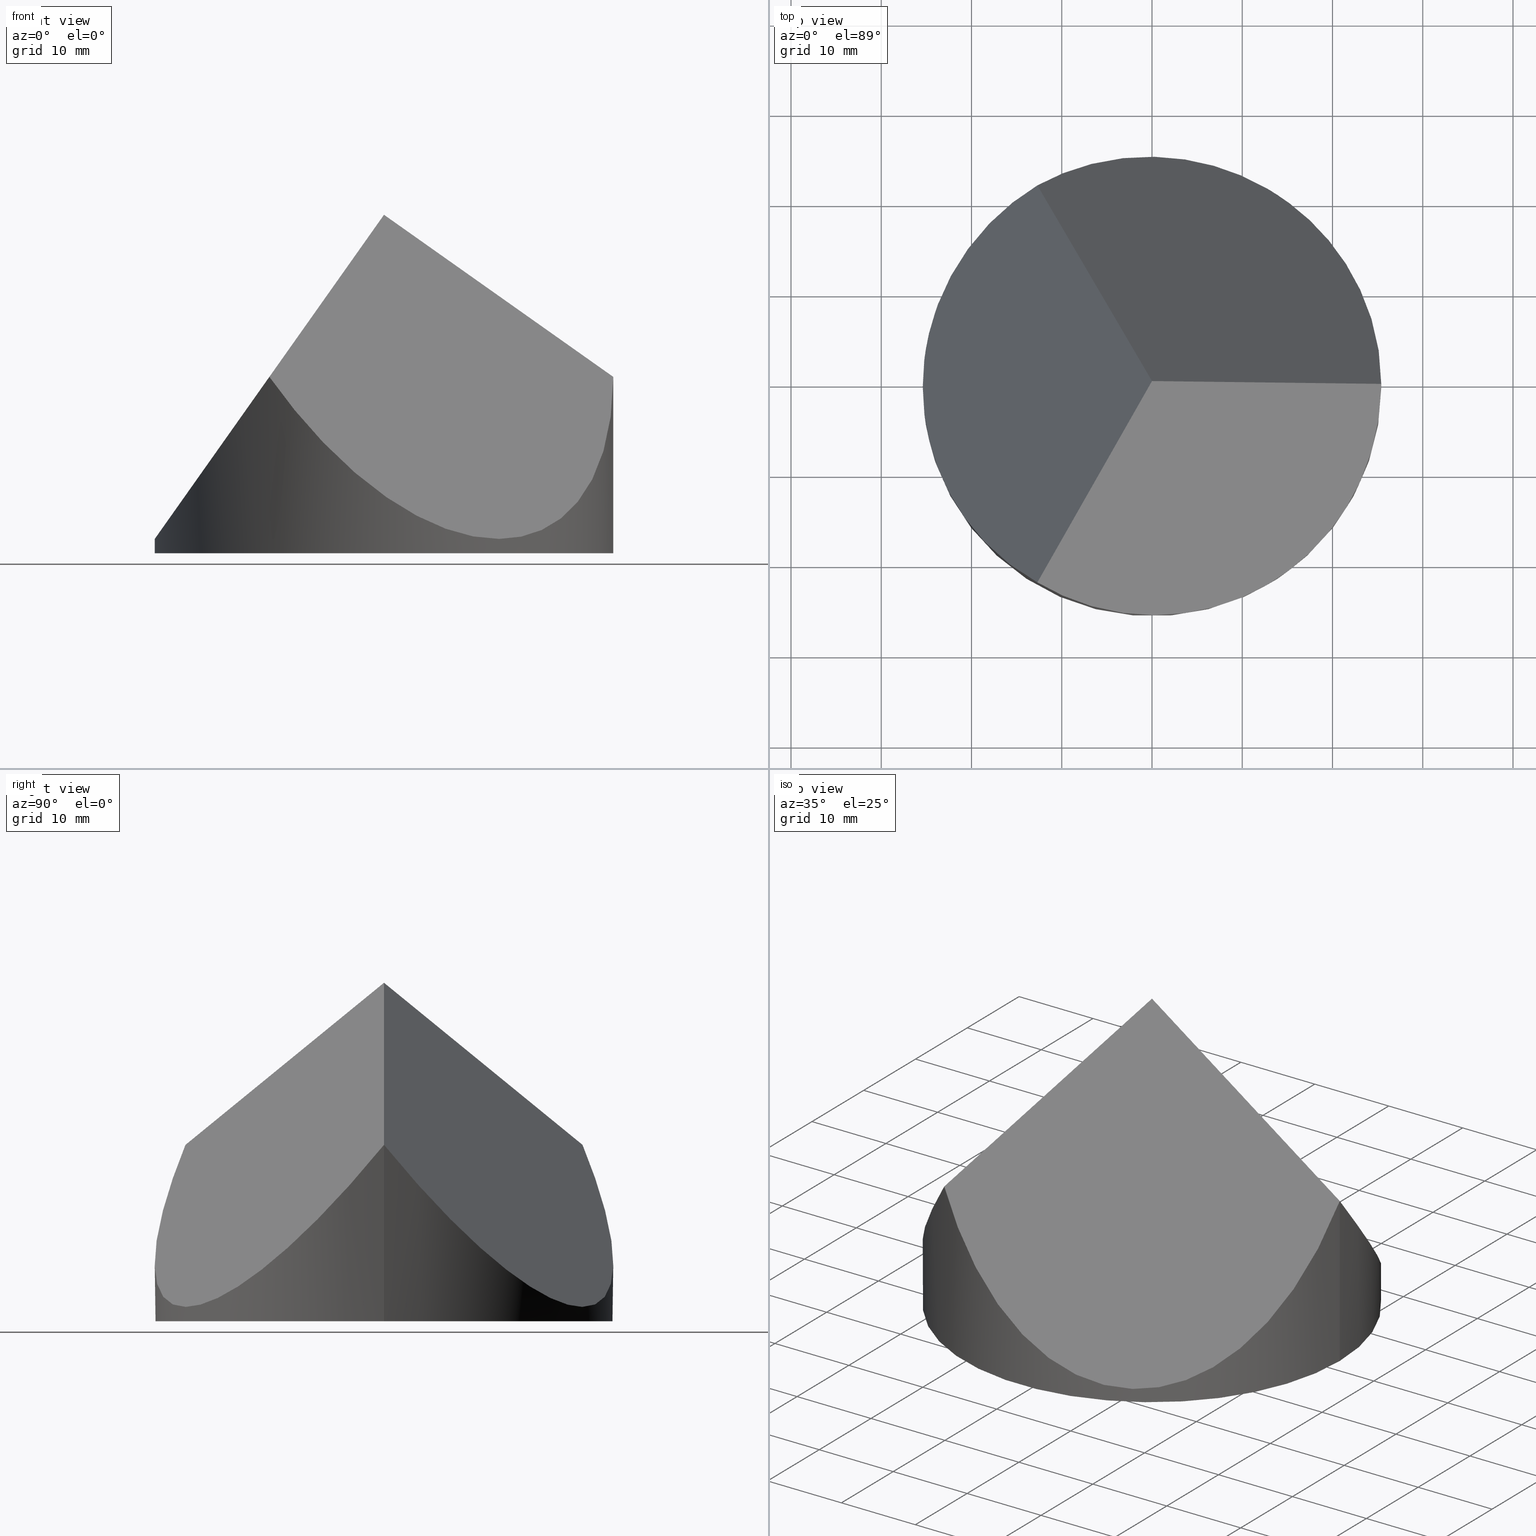
[diagram: canonical four-view strip — front | top / right | iso, engineering-drawing reading convention]
A machine part, canonical four-view strip (front | top / right | iso — engineering-drawing reading convention). The complete STEP part file that produces these views, byte-faithful:
ISO-10303-21;
HEADER;
FILE_DESCRIPTION (( 'STEP AP203' ),
    '1' );
FILE_NAME ('371507.STEP',
    '2019-07-25T01:45:26',
    ( '' ),
    ( '' ),
    'SwSTEP 2.0',
    'SolidWorks 2016',
    '' );
FILE_SCHEMA (( 'CONFIG_CONTROL_DESIGN' ));
ENDSEC;

DATA;
#1 = APPROVAL ( #127, 'δָ��' ) ;
#2 = DATE_AND_TIME ( #186, #174 ) ;
#3 =( LENGTH_UNIT ( ) NAMED_UNIT ( * ) SI_UNIT ( .MILLI., .METRE. ) );
#4 =( BOUNDED_CURVE ( )  B_SPLINE_CURVE ( 3, ( #122, #101, #192, #190 ),
 .UNSPECIFIED., .F., .T. ) 
 B_SPLINE_CURVE_WITH_KNOTS ( ( 4, 4 ),
 ( 0.0000000000000000000, 1.047197551196596700 ),
 .UNSPECIFIED. ) 
 CURVE ( )  GEOMETRIC_REPRESENTATION_ITEM ( )  RATIONAL_B_SPLINE_CURVE ( ( 1.000000000000000000, 0.9106836025229592100, 0.9106836025229592100, 1.000000000000000000 ) ) 
 REPRESENTATION_ITEM ( '' )  );
#5 = SECURITY_CLASSIFICATION_LEVEL ( 'unclassified' ) ;
#6 = ADVANCED_FACE ( 'NONE', ( #225 ), #258, .T. ) ;
#7 = APPLICATION_PROTOCOL_DEFINITION ( 'international standard', 'config_control_design', 1994, #80 ) ;
#8 = EDGE_LOOP ( 'NONE', ( #287, #227, #57, #12 ) ) ;
#9 = CARTESIAN_POINT ( 'NONE',  ( 0.0000000000000000000, 0.0000000000000000000, 0.0000000000000000000 ) ) ;
#10 = PERSON_AND_ORGANIZATION_ROLE ( 'classification_officer' ) ;
#11 = SECURITY_CLASSIFICATION ( '', '', #5 ) ;
#12 = ORIENTED_EDGE ( 'NONE', *, *, #301, .F. ) ;
#13 = ORIENTED_EDGE ( 'NONE', *, *, #43, .T. ) ;
#14 = COORDINATED_UNIVERSAL_TIME_OFFSET ( 8, 0, .AHEAD. ) ;
#15 = DESIGN_CONTEXT ( 'detailed design', #241, 'design' ) ;
#16 = PERSON_AND_ORGANIZATION ( #40, #247 ) ;
#17 = ORIENTED_EDGE ( 'NONE', *, *, #39, .F. ) ;
#18 = CC_DESIGN_DATE_AND_TIME_ASSIGNMENT ( #274, #271, ( #74 ) ) ;
#19 = CALENDAR_DATE ( 2019, 25, 7 ) ;
#20 = LINE ( 'NONE', #181, #183 ) ;
#21 = DIRECTION ( 'NONE',  ( -1.000000000000000000, 0.0000000000000000000, 0.0000000000000000000 ) ) ;
#22 = PRODUCT_DEFINITION_SHAPE ( 'NONE', 'NONE',  #74 ) ;
#23 = PRODUCT_RELATED_PRODUCT_CATEGORY ( 'detail', '', ( #180 ) ) ;
#24 = CALENDAR_DATE ( 2019, 25, 7 ) ;
#25 = ADVANCED_FACE ( 'NONE', ( #68 ), #78, .T. ) ;
#26 = EDGE_LOOP ( 'NONE', ( #85, #17 ) ) ;
#27 = CARTESIAN_POINT ( 'NONE',  ( 53.69357503463527300, -30.99999999999985400, 37.50000000000000000 ) ) ;
#28 = APPLICATION_CONTEXT ( 'configuration controlled 3d designs of mechanical parts and assemblies' ) ;
#29 = PERSON_AND_ORGANIZATION ( #40, #247 ) ;
#30 = VERTEX_POINT ( 'NONE', #255 ) ;
#31 = CARTESIAN_POINT ( 'NONE',  ( 25.40000000000000600, 8.287156070320854400E-015, 19.54321793648239600 ) ) ;
#32 = DIRECTION ( 'NONE',  ( 0.0000000000000000000, 0.0000000000000000000, 1.000000000000000000 ) ) ;
#33 = DATE_TIME_ROLE ( 'creation_date' ) ;
#34 = APPROVAL_DATE_TIME ( #151, #143 ) ;
#35 = CARTESIAN_POINT ( 'NONE',  ( -25.39999999999999900, 0.0000000000000000000, 0.0000000000000000000 ) ) ;
#36 = ORIENTED_EDGE ( 'NONE', *, *, #197, .F. ) ;
#37 = PERSON_AND_ORGANIZATION ( #40, #247 ) ;
#38 = ADVANCED_BREP_SHAPE_REPRESENTATION ( '371507', ( #61, #82 ), #161 ) ;
#39 = EDGE_CURVE ( 'NONE', #252, #304, #207, .T. ) ;
#40 = PERSON ( 'δָ��', 'δָ��', 'δָ��', ('δָ��'), ('δָ��'), ('δָ��') ) ;
#41 = CALENDAR_DATE ( 2019, 25, 7 ) ;
#42 = CARTESIAN_POINT ( 'NONE',  ( 6.349999999999965900, 32.99556788418713200, -7.391955158794217200 ) ) ;
#43 = EDGE_CURVE ( 'NONE', #283, #64, #20, .T. ) ;
#44 = CARTESIAN_POINT ( 'NONE',  ( -6.938893903907228400E-015, -3.650717720411316700E-015, 37.49999999999999300 ) ) ;
#45 = UNCERTAINTY_MEASURE_WITH_UNIT (LENGTH_MEASURE( 1.000000000000000100E-005 ), #3, 'distance_accuracy_value', 'NONE');
#46 = APPROVAL_PERSON_ORGANIZATION ( #237, #176, #121 ) ;
#47 = CARTESIAN_POINT ( 'NONE',  ( 46.33235910246752800, 26.74999999999989700, 37.50000000000000000 ) ) ;
#48 = CARTESIAN_POINT ( 'NONE',  ( 11.40424666751465700, -19.75273465018338100, 53.62469070922507100 ) ) ;
#49 = CC_DESIGN_PERSON_AND_ORGANIZATION_ASSIGNMENT ( #29, #188, ( #250 ) ) ;
#50 = CARTESIAN_POINT ( 'NONE',  ( 0.0000000000000000000, 0.0000000000000000000, 0.0000000000000000000 ) ) ;
#51 = APPROVAL_PERSON_ORGANIZATION ( #113, #143, #294 ) ;
#52 = CARTESIAN_POINT ( 'NONE',  ( -25.40000000000000600, -9.297045256124731000, 1.586435872964648800 ) ) ;
#53 = SHAPE_DEFINITION_REPRESENTATION ( #22, #38 ) ;
#54 = APPLICATION_PROTOCOL_DEFINITION ( 'international standard', 'config_control_design', 1994, #28 ) ;
#55 = DIRECTION ( 'NONE',  ( 1.000000000000000000, 0.0000000000000000000, 0.0000000000000000000 ) ) ;
#56 = FACE_OUTER_BOUND ( 'NONE', #26, .T. ) ;
#57 = ORIENTED_EDGE ( 'NONE', *, *, #189, .F. ) ;
#58 = APPROVAL_ROLE ( '' ) ;
#59 = DATE_AND_TIME ( #120, #193 ) ;
#60 = APPROVAL_DATE_TIME ( #119, #176 ) ;
#61 = MANIFOLD_SOLID_BREP ( '�г�-����3', #152 ) ;
#62 = EDGE_CURVE ( 'NONE', #73, #64, #179, .T. ) ;
#63 = VECTOR ( 'NONE', #212, 1000.000000000000000 ) ;
#64 = VERTEX_POINT ( 'NONE', #44 ) ;
#65 = AXIS2_PLACEMENT_3D ( 'NONE', #160, #228, #114 ) ;
#66 = DIRECTION ( 'NONE',  ( -0.8165531063768113300, -1.665334552906125000E-016, 0.5772703218305786900 ) ) ;
#67 = CARTESIAN_POINT ( 'NONE',  ( 0.0000000000000000000, 0.0000000000000000000, 37.50000000000000000 ) ) ;
#68 = FACE_OUTER_BOUND ( 'NONE', #191, .T. ) ;
#69 = CARTESIAN_POINT ( 'NONE',  ( 0.0000000000000000000, -39.50000000000000000, 37.50000000000000000 ) ) ;
#70 = CARTESIAN_POINT ( 'NONE',  ( -12.70000000000003100, -21.99704525612473600, 19.54321793648228600 ) ) ;
#71 = DESIGN_CONTEXT ( 'detailed design', #28, 'design' ) ;
#72 = DIRECTION ( 'NONE',  ( 0.4082200218682778300, 0.7070578185427395200, 0.5774302165486712200 ) ) ;
#73 = VERTEX_POINT ( 'NONE', #230 ) ;
#74 = PRODUCT_DEFINITION ( 'δ֪', '', #102, #15 ) ;
#75 = PERSON_AND_ORGANIZATION_ROLE ( 'creator' ) ;
#76 = MECHANICAL_CONTEXT ( 'NONE', #80, 'mechanical' ) ;
#77 = AXIS2_PLACEMENT_3D ( 'NONE', #307, #129, #21 ) ;
#78 = CYLINDRICAL_SURFACE ( 'NONE', #108, 25.39999999999999900 ) ;
#79 = PERSON_AND_ORGANIZATION ( #40, #247 ) ;
#80 = APPLICATION_CONTEXT ( 'configuration controlled 3d designs of mechanical parts and assemblies' ) ;
#81 = PERSON_AND_ORGANIZATION_ROLE ( 'creator' ) ;
#82 = AXIS2_PLACEMENT_3D ( 'NONE', #9, #246, #55 ) ;
#83 = COORDINATED_UNIVERSAL_TIME_OFFSET ( 8, 0, .AHEAD. ) ;
#84 = PERSON_AND_ORGANIZATION ( #40, #247 ) ;
#85 = ORIENTED_EDGE ( 'NONE', *, *, #205, .F. ) ;
#86 = CC_DESIGN_APPROVAL ( #143, ( #11 ) ) ;
#87 = LOCAL_TIME ( 9, 45, 26.00000000000000000, #83 ) ;
#88 = PERSON_AND_ORGANIZATION ( #40, #247 ) ;
#89 = CC_DESIGN_PERSON_AND_ORGANIZATION_ASSIGNMENT ( #177, #219, ( #11 ) ) ;
#90 = CARTESIAN_POINT ( 'NONE',  ( -11.40424666751465700, -19.75273465018338800, 21.37530929077492900 ) ) ;
#91 = LOCAL_TIME ( 9, 45, 26.00000000000000000, #206 ) ;
#92 = EDGE_LOOP ( 'NONE', ( #36, #100, #110, #277, #264 ) ) ;
#93 = LOCAL_TIME ( 9, 45, 26.00000000000000000, #156 ) ;
#94 =( BOUNDED_CURVE ( )  B_SPLINE_CURVE ( 3, ( #118, #285, #52, #261 ),
 .UNSPECIFIED., .F., .T. ) 
 B_SPLINE_CURVE_WITH_KNOTS ( ( 4, 4 ),
 ( 5.235987755982989700, 6.283185307179586200 ),
 .UNSPECIFIED. ) 
 CURVE ( )  GEOMETRIC_REPRESENTATION_ITEM ( )  RATIONAL_B_SPLINE_CURVE ( ( 1.000000000000000000, 0.9106836025229592100, 0.9106836025229592100, 1.000000000000000000 ) ) 
 REPRESENTATION_ITEM ( '' )  );
#95 = DIRECTION ( 'NONE',  ( -0.0000000000000000000, -0.0000000000000000000, -1.000000000000000000 ) ) ;
#96 = DATE_AND_TIME ( #263, #157 ) ;
#97 = DIRECTION ( 'NONE',  ( 0.0000000000000000000, -0.6325343505460012700, 0.7745323075116674600 ) ) ;
#98 = CC_DESIGN_PERSON_AND_ORGANIZATION_ASSIGNMENT ( #16, #81, ( #74 ) ) ;
#99 = DIRECTION ( 'NONE',  ( 0.0000000000000000000, 0.0000000000000000000, 1.000000000000000000 ) ) ;
#100 = ORIENTED_EDGE ( 'NONE', *, *, #218, .T. ) ;
#101 = CARTESIAN_POINT ( 'NONE',  ( -25.40000000000000600, 9.297045256124734500, 1.586435872964648800 ) ) ;
#102 = PRODUCT_DEFINITION_FORMATION_WITH_SPECIFIED_SOURCE ( '�κ�', '', #250, .NOT_KNOWN. ) ;
#103 = PERSON_AND_ORGANIZATION_ROLE ( 'creator' ) ;
#104 = APPROVAL_STATUS ( 'not_yet_approved' ) ;
#105 = ORIENTED_EDGE ( 'NONE', *, *, #112, .F. ) ;
#106 = LOCAL_TIME ( 9, 45, 26.00000000000000000, #300 ) ;
#107 = CC_DESIGN_APPROVAL ( #1, ( #202 ) ) ;
#108 = AXIS2_PLACEMENT_3D ( 'NONE', #67, #95, #233 ) ;
#109 = COORDINATED_UNIVERSAL_TIME_OFFSET ( 8, 0, .AHEAD. ) ;
#110 = ORIENTED_EDGE ( 'NONE', *, *, #204, .T. ) ;
#111 = APPROVAL ( #148, 'δָ��' ) ;
#112 = EDGE_CURVE ( 'NONE', #283, #30, #257, .T. ) ;
#113 = PERSON_AND_ORGANIZATION ( #40, #247 ) ;
#114 = DIRECTION ( 'NONE',  ( 1.000000000000000000, 0.0000000000000000000, 0.0000000000000000000 ) ) ;
#115 = DIRECTION ( 'NONE',  ( 1.000000000000000000, 0.0000000000000000000, 0.0000000000000000000 ) ) ;
#116 = COORDINATED_UNIVERSAL_TIME_OFFSET ( 8, 0, .AHEAD. ) ;
#117 = ORIENTED_EDGE ( 'NONE', *, *, #62, .F. ) ;
#118 = CARTESIAN_POINT ( 'NONE',  ( -12.70000000000003100, -21.99704525612473600, 19.54321793648228600 ) ) ;
#119 = DATE_AND_TIME ( #41, #91 ) ;
#120 = CALENDAR_DATE ( 2019, 25, 7 ) ;
#121 = APPROVAL_ROLE ( '' ) ;
#122 = CARTESIAN_POINT ( 'NONE',  ( -25.39999999999999900, 0.0000000000000000000, 1.586435872964663000 ) ) ;
#123 = APPROVAL_ROLE ( '' ) ;
#124 = APPROVAL_STATUS ( 'not_yet_approved' ) ;
#125 = CC_DESIGN_PERSON_AND_ORGANIZATION_ASSIGNMENT ( #84, #75, ( #312 ) ) ;
#126 = APPROVAL_DATE_TIME ( #2, #111 ) ;
#127 = APPROVAL_STATUS ( 'not_yet_approved' ) ;
#128 = APPROVAL_PERSON_ORGANIZATION ( #220, #141, #58 ) ;
#129 = DIRECTION ( 'NONE',  ( -0.0000000000000000000, -0.0000000000000000000, -1.000000000000000000 ) ) ;
#130 = CC_DESIGN_PERSON_AND_ORGANIZATION_ASSIGNMENT ( #267, #145, ( #158 ) ) ;
#131 = CARTESIAN_POINT ( 'NONE',  ( 25.40000000000000200, 21.99704525612476000, -7.391955158794154100 ) ) ;
#132 = ADVANCED_FACE ( 'NONE', ( #163 ), #162, .F. ) ;
#133 = CC_DESIGN_APPROVAL ( #141, ( #74 ) ) ;
#134 = LINE ( 'NONE', #259, #63 ) ;
#135 = APPROVAL_PERSON_ORGANIZATION ( #88, #146, #123 ) ;
#136 = EDGE_CURVE ( 'NONE', #215, #304, #182, .T. ) ;
#137 = CARTESIAN_POINT ( 'NONE',  ( 6.349999999999976600, -32.99556788418713200, -7.391955158794225200 ) ) ;
#138 = DIRECTION ( 'NONE',  ( 0.4082765531884056700, -0.7071557336614137100, 0.5772703218305811300 ) ) ;
#139 = LOCAL_TIME ( 9, 45, 26.00000000000000000, #198 ) ;
#140 = DIRECTION ( 'NONE',  ( -0.4082200218682779900, 0.7070578185427394100, -0.5774302165486712200 ) ) ;
#141 = APPROVAL ( #269, 'δָ��' ) ;
#142 = MECHANICAL_CONTEXT ( 'NONE', #194, 'mechanical' ) ;
#143 = APPROVAL ( #104, 'δָ��' ) ;
#144 = FACE_OUTER_BOUND ( 'NONE', #279, .T. ) ;
#145 = PERSON_AND_ORGANIZATION_ROLE ( 'design_supplier' ) ;
#146 = APPROVAL ( #124, 'δָ��' ) ;
#147 = DATE_AND_TIME ( #270, #106 ) ;
#148 = APPROVAL_STATUS ( 'not_yet_approved' ) ;
#149 = APPLICATION_PROTOCOL_DEFINITION ( 'international standard', 'config_control_design', 1994, #241 ) ;
#150 = SECURITY_CLASSIFICATION_LEVEL ( 'unclassified' ) ;
#151 = DATE_AND_TIME ( #203, #139 ) ;
#152 = CLOSED_SHELL ( 'NONE', ( #25, #6, #132, #236, #229, #232 ) ) ;
#153 = CC_DESIGN_DATE_AND_TIME_ASSIGNMENT ( #297, #217, ( #11 ) ) ;
#154 = DATE_TIME_ROLE ( 'classification_date' ) ;
#155 = APPROVAL_PERSON_ORGANIZATION ( #251, #111, #293 ) ;
#156 = COORDINATED_UNIVERSAL_TIME_OFFSET ( 8, 0, .AHEAD. ) ;
#157 = LOCAL_TIME ( 9, 45, 26.00000000000000000, #209 ) ;
#158 = PRODUCT_DEFINITION_FORMATION_WITH_SPECIFIED_SOURCE ( '�κ�', '', #180, .NOT_KNOWN. ) ;
#159 = ORIENTED_EDGE ( 'NONE', *, *, #189, .T. ) ;
#160 = CARTESIAN_POINT ( 'NONE',  ( 0.0000000000000000000, 0.0000000000000000000, 0.0000000000000000000 ) ) ;
#161 =( GEOMETRIC_REPRESENTATION_CONTEXT ( 3 ) GLOBAL_UNCERTAINTY_ASSIGNED_CONTEXT ( ( #45 ) ) GLOBAL_UNIT_ASSIGNED_CONTEXT ( ( #3, #221, #172 ) ) REPRESENTATION_CONTEXT ( 'NONE', 'WORKASPACE' ) );
#162 = PLANE ( 'NONE',  #272 ) ;
#163 = FACE_OUTER_BOUND ( 'NONE', #8, .T. ) ;
#164 = AXIS2_PLACEMENT_3D ( 'NONE', #27, #72, #97 ) ;
#165 = CARTESIAN_POINT ( 'NONE',  ( 0.0000000000000000000, 0.0000000000000000000, 0.0000000000000000000 ) ) ;
#166 = DIRECTION ( 'NONE',  ( 0.0000000000000000000, 0.6325343505460012700, 0.7745323075116674600 ) ) ;
#167 = CARTESIAN_POINT ( 'NONE',  ( -25.39999999999999900, 0.0000000000000000000, 37.50000000000000000 ) ) ;
#168 = COORDINATED_UNIVERSAL_TIME_OFFSET ( 8, 0, .AHEAD. ) ;
#169 = CARTESIAN_POINT ( 'NONE',  ( 0.0000000000000000000, 0.0000000000000000000, 0.0000000000000000000 ) ) ;
#170 =( BOUNDED_CURVE ( )  B_SPLINE_CURVE ( 3, ( #213, #238, #137, #70 ),
 .UNSPECIFIED., .F., .T. ) 
 B_SPLINE_CURVE_WITH_KNOTS ( ( 4, 4 ),
 ( 5.235987755982986200, 7.330382858376182800 ),
 .UNSPECIFIED. ) 
 CURVE ( )  GEOMETRIC_REPRESENTATION_ITEM ( )  RATIONAL_B_SPLINE_CURVE ( ( 1.000000000000000000, 0.6666666666666663000, 0.6666666666666663000, 1.000000000000000000 ) ) 
 REPRESENTATION_ITEM ( '' )  );
#171 = APPROVAL_STATUS ( 'not_yet_approved' ) ;
#172 =( NAMED_UNIT ( * ) SI_UNIT ( $, .STERADIAN. ) SOLID_ANGLE_UNIT ( ) );
#173 = AXIS2_PLACEMENT_3D ( 'NONE', #165, #99, #115 ) ;
#174 = LOCAL_TIME ( 9, 45, 26.00000000000000000, #116 ) ;
#175 = ORIENTED_EDGE ( 'NONE', *, *, #197, .T. ) ;
#176 = APPROVAL ( #171, 'δָ��' ) ;
#177 = PERSON_AND_ORGANIZATION ( #40, #247 ) ;
#178 = CC_DESIGN_APPROVAL ( #146, ( #102 ) ) ;
#179 = LINE ( 'NONE', #90, #242 ) ;
#180 = PRODUCT ( '371507', '371507', '', ( #142 ) ) ;
#181 = CARTESIAN_POINT ( 'NONE',  ( 35.80067308283096800, 1.040834085586084300E-014, 12.19035888678596900 ) ) ;
#182 = LINE ( 'NONE', #167, #291 ) ;
#183 = VECTOR ( 'NONE', #66, 1000.000000000000100 ) ;
#184 = APPROVAL_DATE_TIME ( #253, #1 ) ;
#185 = DIRECTION ( 'NONE',  ( -0.5774302165486711000, 0.0000000000000000000, -0.8164400437365593200 ) ) ;
#186 = CALENDAR_DATE ( 2019, 25, 7 ) ;
#187 = PLANE ( 'NONE',  #280 ) ;
#188 = PERSON_AND_ORGANIZATION_ROLE ( 'design_owner' ) ;
#189 = EDGE_CURVE ( 'NONE', #30, #64, #309, .T. ) ;
#190 = CARTESIAN_POINT ( 'NONE',  ( -12.70000000000002400, 21.99704525612472500, 19.54321793648229600 ) ) ;
#191 = EDGE_LOOP ( 'NONE', ( #105, #175, #275, #310, #210 ) ) ;
#192 = CARTESIAN_POINT ( 'NONE',  ( -20.75147737193764300, 17.34852262806235900, 8.159074278432859400 ) ) ;
#193 = LOCAL_TIME ( 9, 45, 26.00000000000000000, #14 ) ;
#194 = APPLICATION_CONTEXT ( 'configuration controlled 3d designs of mechanical parts and assemblies' ) ;
#195 = CC_DESIGN_PERSON_AND_ORGANIZATION_ASSIGNMENT ( #211, #10, ( #202 ) ) ;
#196 = DIRECTION ( 'NONE',  ( 1.000000000000000000, 0.0000000000000000000, -0.0000000000000000000 ) ) ;
#197 = EDGE_CURVE ( 'NONE', #283, #252, #134, .T. ) ;
#198 = COORDINATED_UNIVERSAL_TIME_OFFSET ( 8, 0, .AHEAD. ) ;
#199 = ORIENTED_EDGE ( 'NONE', *, *, #218, .F. ) ;
#200 = FACE_OUTER_BOUND ( 'NONE', #201, .T. ) ;
#201 = EDGE_LOOP ( 'NONE', ( #245, #298, #159 ) ) ;
#202 = SECURITY_CLASSIFICATION ( '', '', #150 ) ;
#203 = CALENDAR_DATE ( 2019, 25, 7 ) ;
#204 = EDGE_CURVE ( 'NONE', #73, #215, #94, .T. ) ;
#205 = EDGE_CURVE ( 'NONE', #304, #252, #286, .T. ) ;
#206 = COORDINATED_UNIVERSAL_TIME_OFFSET ( 8, 0, .AHEAD. ) ;
#207 = CIRCLE ( 'NONE', #65, 25.39999999999999900 ) ;
#208 = DIRECTION ( 'NONE',  ( 0.8164400437365593200, 0.0000000000000000000, -0.5774302165486711000 ) ) ;
#209 = COORDINATED_UNIVERSAL_TIME_OFFSET ( 8, 0, .AHEAD. ) ;
#210 = ORIENTED_EDGE ( 'NONE', *, *, #301, .T. ) ;
#211 = PERSON_AND_ORGANIZATION ( #40, #247 ) ;
#212 = DIRECTION ( 'NONE',  ( -0.0000000000000000000, -0.0000000000000000000, -1.000000000000000000 ) ) ;
#213 = CARTESIAN_POINT ( 'NONE',  ( 25.40000000000000600, 8.287156070320854400E-015, 19.54321793648239600 ) ) ;
#214 = APPLICATION_PROTOCOL_DEFINITION ( 'international standard', 'config_control_design', 1994, #194 ) ;
#215 = VERTEX_POINT ( 'NONE', #311 ) ;
#216 = APPROVAL_PERSON_ORGANIZATION ( #288, #1, #223 ) ;
#217 = DATE_TIME_ROLE ( 'classification_date' ) ;
#218 = EDGE_CURVE ( 'NONE', #283, #73, #170, .T. ) ;
#219 = PERSON_AND_ORGANIZATION_ROLE ( 'classification_officer' ) ;
#220 = PERSON_AND_ORGANIZATION ( #40, #247 ) ;
#221 =( NAMED_UNIT ( * ) PLANE_ANGLE_UNIT ( ) SI_UNIT ( $, .RADIAN. ) );
#222 = CC_DESIGN_APPROVAL ( #176, ( #158 ) ) ;
#223 = APPROVAL_ROLE ( '' ) ;
#224 = VECTOR ( 'NONE', #138, 1000.000000000000000 ) ;
#225 = FACE_OUTER_BOUND ( 'NONE', #92, .T. ) ;
#226 = DATE_AND_TIME ( #19, #276 ) ;
#227 = ORIENTED_EDGE ( 'NONE', *, *, #62, .T. ) ;
#228 = DIRECTION ( 'NONE',  ( 0.0000000000000000000, 0.0000000000000000000, 1.000000000000000000 ) ) ;
#229 = ADVANCED_FACE ( 'NONE', ( #200 ), #265, .T. ) ;
#230 = CARTESIAN_POINT ( 'NONE',  ( -12.70000000000003100, -21.99704525612473600, 19.54321793648228600 ) ) ;
#231 = CALENDAR_DATE ( 2019, 25, 7 ) ;
#232 = ADVANCED_FACE ( 'NONE', ( #144 ), #290, .F. ) ;
#233 = DIRECTION ( 'NONE',  ( -1.000000000000000000, 0.0000000000000000000, 0.0000000000000000000 ) ) ;
#234 = PERSON_AND_ORGANIZATION ( #40, #247 ) ;
#235 = DIRECTION ( 'NONE',  ( -0.0000000000000000000, -0.0000000000000000000, -1.000000000000000000 ) ) ;
#236 = ADVANCED_FACE ( 'NONE', ( #56 ), #187, .F. ) ;
#237 = PERSON_AND_ORGANIZATION ( #40, #247 ) ;
#238 = CARTESIAN_POINT ( 'NONE',  ( 25.40000000000000200, -21.99704525612475300, -7.391955158794162100 ) ) ;
#239 = APPROVAL_DATE_TIME ( #147, #146 ) ;
#240 = CARTESIAN_POINT ( 'NONE',  ( 25.39999999999999900, 3.110602869834276900E-015, 0.0000000000000000000 ) ) ;
#241 = APPLICATION_CONTEXT ( 'configuration controlled 3d designs of mechanical parts and assemblies' ) ;
#242 = VECTOR ( 'NONE', #254, 1000.000000000000100 ) ;
#243 = PERSON_AND_ORGANIZATION_ROLE ( 'design_owner' ) ;
#244 = CC_DESIGN_PERSON_AND_ORGANIZATION_ASSIGNMENT ( #234, #243, ( #180 ) ) ;
#245 = ORIENTED_EDGE ( 'NONE', *, *, #43, .F. ) ;
#246 = DIRECTION ( 'NONE',  ( 0.0000000000000000000, 0.0000000000000000000, 1.000000000000000000 ) ) ;
#247 = ORGANIZATION ( 'δָ��', 'δָ��', '' ) ;
#248 = CC_DESIGN_SECURITY_CLASSIFICATION ( #202, ( #102 ) ) ;
#249 = PRODUCT_DEFINITION_SHAPE ( 'NONE', 'NONE',  #312 ) ;
#250 = PRODUCT ( '371507', '371507', '', ( #76 ) ) ;
#251 = PERSON_AND_ORGANIZATION ( #40, #247 ) ;
#252 = VERTEX_POINT ( 'NONE', #240 ) ;
#253 = DATE_AND_TIME ( #305, #93 ) ;
#254 = DIRECTION ( 'NONE',  ( 0.4082765531884056100, 0.7071557336614137100, 0.5772703218305810200 ) ) ;
#255 = CARTESIAN_POINT ( 'NONE',  ( -12.70000000000002400, 21.99704525612472500, 19.54321793648229600 ) ) ;
#256 = CC_DESIGN_PERSON_AND_ORGANIZATION_ASSIGNMENT ( #37, #299, ( #102 ) ) ;
#257 =( BOUNDED_CURVE ( )  B_SPLINE_CURVE ( 3, ( #281, #131, #42, #284 ),
 .UNSPECIFIED., .F., .T. ) 
 B_SPLINE_CURVE_WITH_KNOTS ( ( 4, 4 ),
 ( 5.235987755982986200, 7.330382858376182800 ),
 .UNSPECIFIED. ) 
 CURVE ( )  GEOMETRIC_REPRESENTATION_ITEM ( )  RATIONAL_B_SPLINE_CURVE ( ( 1.000000000000000000, 0.6666666666666663000, 0.6666666666666663000, 1.000000000000000000 ) ) 
 REPRESENTATION_ITEM ( '' )  );
#258 = CYLINDRICAL_SURFACE ( 'NONE', #77, 25.39999999999999900 ) ;
#259 = CARTESIAN_POINT ( 'NONE',  ( 25.39999999999999900, 3.110602869834276900E-015, 37.50000000000000000 ) ) ;
#260 = CC_DESIGN_DATE_AND_TIME_ASSIGNMENT ( #59, #154, ( #202 ) ) ;
#261 = CARTESIAN_POINT ( 'NONE',  ( -25.39999999999999900, 0.0000000000000000000, 1.586435872964663000 ) ) ;
#262 = AXIS2_PLACEMENT_3D ( 'NONE', #47, #140, #166 ) ;
#263 = CALENDAR_DATE ( 2019, 25, 7 ) ;
#264 = ORIENTED_EDGE ( 'NONE', *, *, #205, .T. ) ;
#265 = PLANE ( 'NONE',  #164 ) ;
#266 = CC_DESIGN_APPROVAL ( #111, ( #312 ) ) ;
#267 = PERSON_AND_ORGANIZATION ( #40, #247 ) ;
#268 = CC_DESIGN_SECURITY_CLASSIFICATION ( #11, ( #158 ) ) ;
#269 = APPROVAL_STATUS ( 'not_yet_approved' ) ;
#270 = CALENDAR_DATE ( 2019, 25, 7 ) ;
#271 = DATE_TIME_ROLE ( 'creation_date' ) ;
#272 = AXIS2_PLACEMENT_3D ( 'NONE', #69, #208, #185 ) ;
#273 = DIRECTION ( 'NONE',  ( 0.0000000000000000000, 0.0000000000000000000, 1.000000000000000000 ) ) ;
#274 = DATE_AND_TIME ( #24, #87 ) ;
#275 = ORIENTED_EDGE ( 'NONE', *, *, #39, .T. ) ;
#276 = LOCAL_TIME ( 9, 45, 26.00000000000000000, #109 ) ;
#277 = ORIENTED_EDGE ( 'NONE', *, *, #136, .T. ) ;
#278 = APPROVAL_DATE_TIME ( #96, #141 ) ;
#279 = EDGE_LOOP ( 'NONE', ( #13, #117, #199 ) ) ;
#280 = AXIS2_PLACEMENT_3D ( 'NONE', #50, #273, #196 ) ;
#281 = CARTESIAN_POINT ( 'NONE',  ( 25.40000000000000600, 8.287156070320854400E-015, 19.54321793648239600 ) ) ;
#282 = PERSON_AND_ORGANIZATION ( #40, #247 ) ;
#283 = VERTEX_POINT ( 'NONE', #31 ) ;
#284 = CARTESIAN_POINT ( 'NONE',  ( -12.70000000000002400, 21.99704525612472500, 19.54321793648229600 ) ) ;
#285 = CARTESIAN_POINT ( 'NONE',  ( -20.75147737193763600, -17.34852262806235900, 8.159074278432862900 ) ) ;
#286 = CIRCLE ( 'NONE', #173, 25.39999999999999900 ) ;
#287 = ORIENTED_EDGE ( 'NONE', *, *, #204, .F. ) ;
#288 = PERSON_AND_ORGANIZATION ( #40, #247 ) ;
#289 = CC_DESIGN_DATE_AND_TIME_ASSIGNMENT ( #226, #33, ( #312 ) ) ;
#290 = PLANE ( 'NONE',  #262 ) ;
#291 = VECTOR ( 'NONE', #235, 1000.000000000000000 ) ;
#292 = DIRECTION ( 'NONE',  ( 1.000000000000000000, 0.0000000000000000000, 0.0000000000000000000 ) ) ;
#293 = APPROVAL_ROLE ( '' ) ;
#294 = APPROVAL_ROLE ( '' ) ;
#295 = PERSON_AND_ORGANIZATION_ROLE ( 'creator' ) ;
#296 = AXIS2_PLACEMENT_3D ( 'NONE', #169, #32, #292 ) ;
#297 = DATE_AND_TIME ( #231, #306 ) ;
#298 = ORIENTED_EDGE ( 'NONE', *, *, #112, .T. ) ;
#299 = PERSON_AND_ORGANIZATION_ROLE ( 'design_supplier' ) ;
#300 = COORDINATED_UNIVERSAL_TIME_OFFSET ( 8, 0, .AHEAD. ) ;
#301 = EDGE_CURVE ( 'NONE', #215, #30, #4, .T. ) ;
#302 = CC_DESIGN_PERSON_AND_ORGANIZATION_ASSIGNMENT ( #282, #103, ( #158 ) ) ;
#303 = PRODUCT_RELATED_PRODUCT_CATEGORY ( 'detail', '', ( #250 ) ) ;
#304 = VERTEX_POINT ( 'NONE', #35 ) ;
#305 = CALENDAR_DATE ( 2019, 25, 7 ) ;
#306 = LOCAL_TIME ( 9, 45, 26.00000000000000000, #168 ) ;
#307 = CARTESIAN_POINT ( 'NONE',  ( 0.0000000000000000000, 0.0000000000000000000, 37.50000000000000000 ) ) ;
#308 = CC_DESIGN_PERSON_AND_ORGANIZATION_ASSIGNMENT ( #79, #295, ( #102 ) ) ;
#309 = LINE ( 'NONE', #48, #224 ) ;
#310 = ORIENTED_EDGE ( 'NONE', *, *, #136, .F. ) ;
#311 = CARTESIAN_POINT ( 'NONE',  ( -25.39999999999999900, 0.0000000000000000000, 1.586435872964663000 ) ) ;
#312 = PRODUCT_DEFINITION ( 'δ֪', '', #158, #71 ) ;
ENDSEC;
END-ISO-10303-21;
